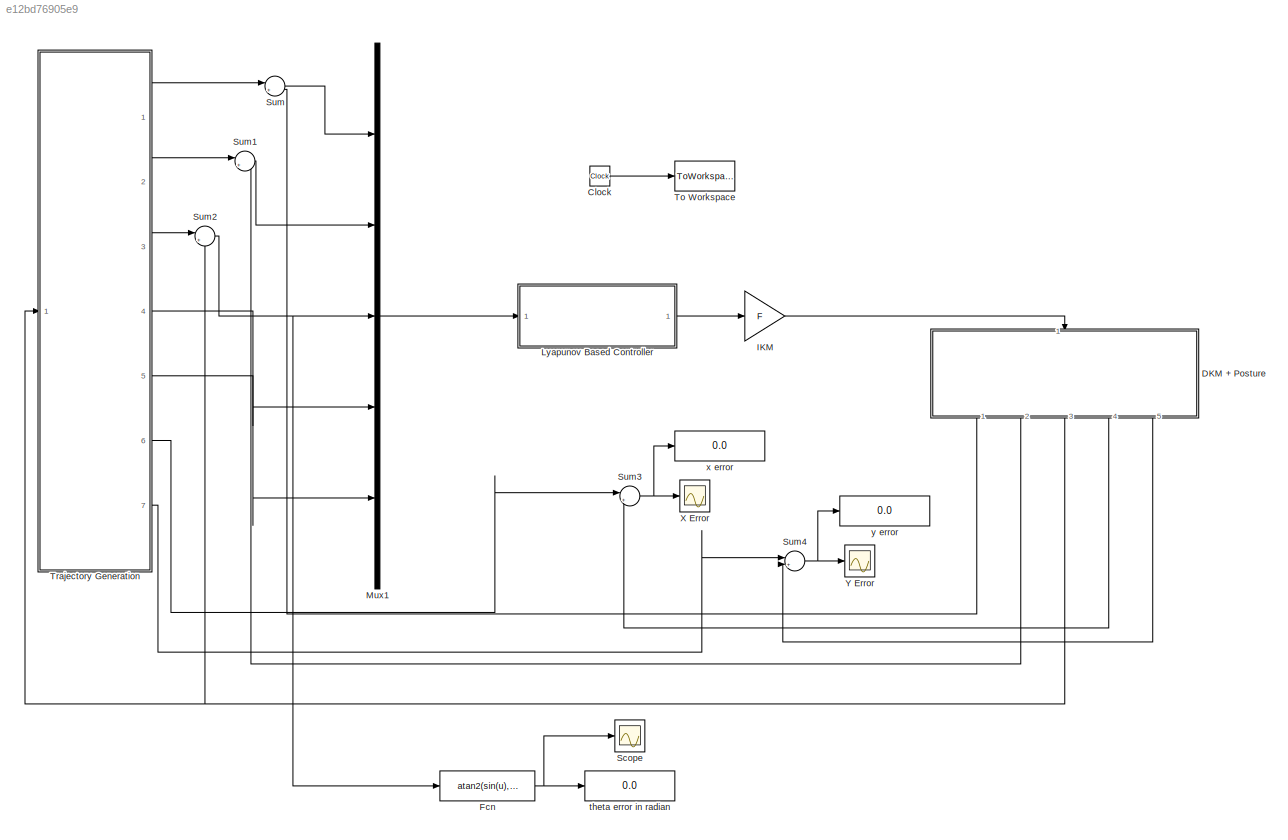
MODEL slx_e12bd76905e9
KIND model
CONFIG AbsTol = auto
CONFIG FixedStep = 0.001
CONFIG MaxStep = auto
CONFIG MinStep = auto
CONFIG RelTol = 1e-3
CONFIG SampleTimeConstraint = Unconstrained
CONFIG Solver = ode3
CONFIG SolverMode = Auto
CONFIG SolverName = ode3
CONFIG StartTime = 0.0
CONFIG StopTime = 26
BLOCK [Clock] Clock
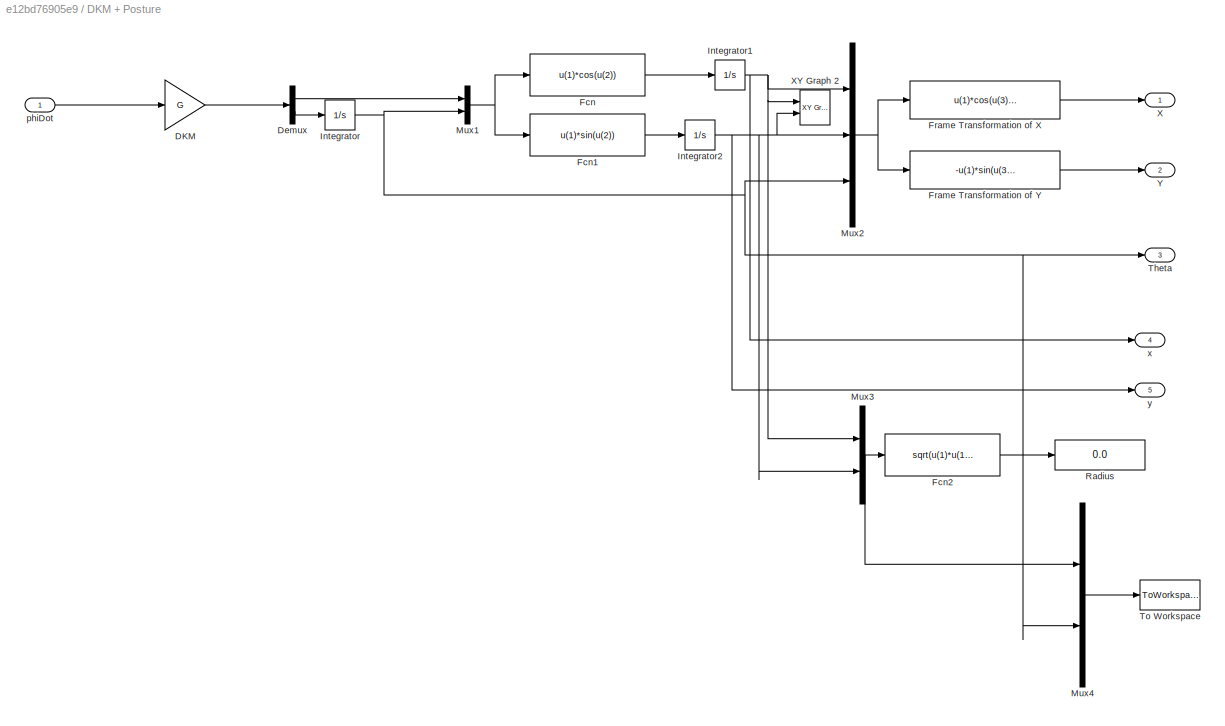
BLOCK [SubSystem] DKM + Posture
  Ports = [1, 5]
  RequestExecContextInheritance = off
BLOCK [Gain] DKM + Posture/DKM
  Gain = G
  Multiplication = Matrix(K*u)
  OutDataTypeStr = Inherit: Inherit via internal rule
  ParamDataTypeStr = Inherit: Inherit via internal rule
  SaturateOnIntegerOverflow = off
BLOCK [Demux] DKM + Posture/Demux
  DisplayOption = bar
  Outputs = 2
  Ports = [1, 2]
BLOCK [Fcn] DKM + Posture/Fcn
  Expr = u(1)*cos(u(2))
BLOCK [Fcn] DKM + Posture/Fcn1
  Expr = u(1)*sin(u(2))
BLOCK [Fcn] DKM + Posture/Fcn2
  Expr = sqrt(u(1)*u(1)+u(2)*u(2))
BLOCK [Fcn] DKM + Posture/Frame Transformation of X
  Expr = u(1)*cos(u(3))+u(2)*sin(u(3))
BLOCK [Fcn] DKM + Posture/Frame Transformation of Y
  Expr = -u(1)*sin(u(3))+u(2)*cos(u(3))
BLOCK [Integrator] DKM + Posture/Integrator
  InitialCondition = theta0
  Ports = [1, 1]
BLOCK [Integrator] DKM + Posture/Integrator1
  InitialCondition = x0
  Ports = [1, 1]
BLOCK [Integrator] DKM + Posture/Integrator2
  InitialCondition = y0
  Ports = [1, 1]
BLOCK [Mux] DKM + Posture/Mux1
  DisplayOption = bar
  Inputs = 2
  Ports = [2, 1]
BLOCK [Mux] DKM + Posture/Mux2
  DisplayOption = bar
  Inputs = 3
  Ports = [3, 1]
BLOCK [Mux] DKM + Posture/Mux3
  DisplayOption = bar
  Inputs = 2
  Ports = [2, 1]
BLOCK [Mux] DKM + Posture/Mux4
  DisplayOption = bar
  Inputs = 2
  Ports = [2, 1]
BLOCK [Display] DKM + Posture/Radius
  Decimation = 1
  Ports = [1]
BLOCK [Outport] DKM + Posture/Theta
  IconDisplay = Port number
  Port = 3
BLOCK [ToWorkspace] DKM + Posture/To Workspace
  FixptAsFi = on
  MaxDataPoints = inf
  Ports = [1]
  SampleTime = -1
  Save2DSignal = 3-D array (concatenate along third dimension)
  VariableName = output
BLOCK [Outport] DKM + Posture/X
  IconDisplay = Port number
BLOCK [Reference] DKM + Posture/XY Graph 2  REF=simulink/Sinks/XY Graph
  Ports = [2]
  SourceBlock = simulink/Sinks/XY Graph
  SourceType = XY scope.
  st = -1
  xmax = 2.3
  xmin = -2.3
  ymax = 2.3
  ymin = -2.3
BLOCK [Outport] DKM + Posture/Y
  IconDisplay = Port number
  Port = 2
BLOCK [Inport] DKM + Posture/phiDot
  IconDisplay = Port number
BLOCK [Outport] DKM + Posture/x
  IconDisplay = Port number
  Port = 4
BLOCK [Outport] DKM + Posture/y
  IconDisplay = Port number
  Port = 5
BLOCK [Fcn] Fcn
  Expr = atan2(sin(u),cos(u))
BLOCK [Gain] IKM
  Gain = F
  Multiplication = Matrix(K*u)
  OutDataTypeStr = Inherit: Inherit via internal rule
  ParamDataTypeStr = Inherit: Inherit via internal rule
  SaturateOnIntegerOverflow = off
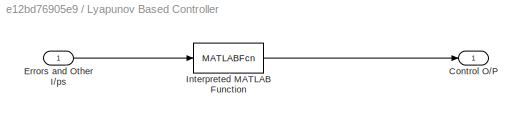
BLOCK [SubSystem] Lyapunov Based Controller
  Ports = [1, 1]
  RequestExecContextInheritance = off
BLOCK [Outport] Lyapunov Based Controller/Control O//P
  IconDisplay = Port number
BLOCK [Inport] Lyapunov Based Controller/Errors and Other I//ps
  IconDisplay = Port number
BLOCK [MATLABFcn] Lyapunov Based Controller/Interpreted MATLAB Function
  MATLABFcn = lyapu(u)
  OutputDimensions = 2
  Ports = [1, 1]
BLOCK [Mux] Mux1
  DisplayOption = bar
  Inputs = 5
  Ports = [5, 1]
BLOCK [Scope] Scope
  DataFormat = StructureWithTime
  Floating = off
  LimitDataPoints = off
  NumInputPorts = 1
  Ports = [1]
  YMax = 0.19635
  YMin = -1.76715
BLOCK [Sum] Sum
  IconShape = round
  InputSameDT = off
  Inputs = |+-
  OutDataTypeStr = Inherit: Inherit via internal rule
  Ports = [2, 1]
  SaturateOnIntegerOverflow = off
BLOCK [Sum] Sum1
  IconShape = round
  InputSameDT = off
  Inputs = |+-
  OutDataTypeStr = Inherit: Inherit via internal rule
  Ports = [2, 1]
  SaturateOnIntegerOverflow = off
BLOCK [Sum] Sum2
  IconShape = round
  InputSameDT = off
  Inputs = |+-
  OutDataTypeStr = Inherit: Inherit via internal rule
  Ports = [2, 1]
  SaturateOnIntegerOverflow = off
BLOCK [Sum] Sum3
  IconShape = round
  InputSameDT = off
  Inputs = |+-
  OutDataTypeStr = Inherit: Inherit via internal rule
  Ports = [2, 1]
  SaturateOnIntegerOverflow = off
BLOCK [Sum] Sum4
  IconShape = round
  InputSameDT = off
  Inputs = |+-
  OutDataTypeStr = Inherit: Inherit via internal rule
  Ports = [2, 1]
  SaturateOnIntegerOverflow = off
BLOCK [ToWorkspace] To Workspace
  FixptAsFi = on
  MaxDataPoints = inf
  Ports = [1]
  SampleTime = -1
  Save2DSignal = 3-D array (concatenate along third dimension)
  VariableName = t
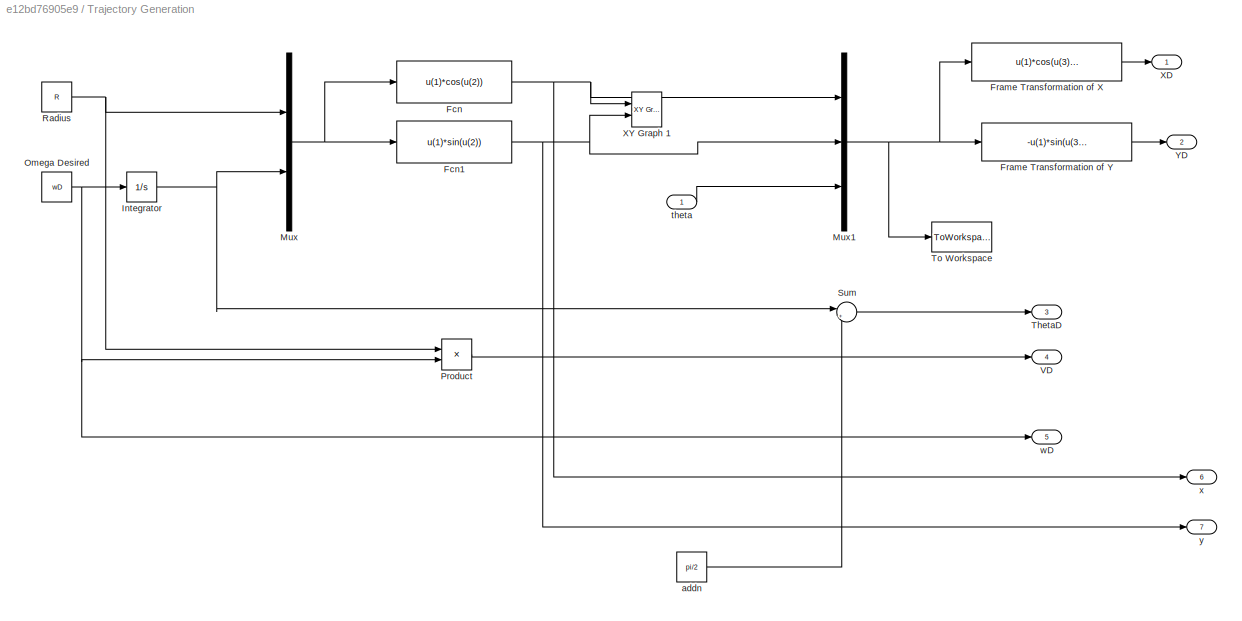
BLOCK [SubSystem] Trajectory Generation
  Ports = [1, 7]
  RequestExecContextInheritance = off
BLOCK [Fcn] Trajectory Generation/Fcn
  Expr = u(1)*cos(u(2))
BLOCK [Fcn] Trajectory Generation/Fcn1
  Expr = u(1)*sin(u(2))
BLOCK [Fcn] Trajectory Generation/Frame Transformation of X
  Expr = u(1)*cos(u(3))+u(2)*sin(u(3))
BLOCK [Fcn] Trajectory Generation/Frame Transformation of Y
  Expr = -u(1)*sin(u(3))+u(2)*cos(u(3))
BLOCK [Integrator] Trajectory Generation/Integrator
  Ports = [1, 1]
BLOCK [Mux] Trajectory Generation/Mux
  DisplayOption = bar
  Inputs = 2
  Ports = [2, 1]
BLOCK [Mux] Trajectory Generation/Mux1
  DisplayOption = bar
  Inputs = 3
  Ports = [3, 1]
BLOCK [Constant] Trajectory Generation/Omega Desired
  Value = wD
BLOCK [Product] Trajectory Generation/Product
  InputSameDT = off
  OutDataTypeStr = Inherit: Inherit via internal rule
  Ports = [2, 1]
  RndMeth = Floor
  SaturateOnIntegerOverflow = off
BLOCK [Constant] Trajectory Generation/Radius
  Value = R
BLOCK [Sum] Trajectory Generation/Sum
  IconShape = round
  InputSameDT = off
  Inputs = |++
  OutDataTypeStr = Inherit: Inherit via internal rule
  Ports = [2, 1]
  SaturateOnIntegerOverflow = off
BLOCK [Outport] Trajectory Generation/ThetaD
  IconDisplay = Port number
  Port = 3
BLOCK [ToWorkspace] Trajectory Generation/To Workspace
  FixptAsFi = on
  MaxDataPoints = inf
  Ports = [1]
  SampleTime = -1
  Save2DSignal = 3-D array (concatenate along third dimension)
  VariableName = input
BLOCK [Outport] Trajectory Generation/VD
  IconDisplay = Port number
  Port = 4
BLOCK [Outport] Trajectory Generation/XD
  IconDisplay = Port number
BLOCK [Reference] Trajectory Generation/XY Graph 1  REF=simulink/Sinks/XY Graph
  Ports = [2]
  SourceBlock = simulink/Sinks/XY Graph
  SourceType = XY scope.
  st = -1
  xmax = 2.3
  xmin = -2.3
  ymax = 2.3
  ymin = -2.3
BLOCK [Outport] Trajectory Generation/YD
  IconDisplay = Port number
  Port = 2
BLOCK [Constant] Trajectory Generation/addn
  Value = pi/2
BLOCK [Inport] Trajectory Generation/theta
  IconDisplay = Port number
BLOCK [Outport] Trajectory Generation/wD
  IconDisplay = Port number
  Port = 5
BLOCK [Outport] Trajectory Generation/x
  IconDisplay = Port number
  Port = 6
BLOCK [Outport] Trajectory Generation/y
  IconDisplay = Port number
  Port = 7
BLOCK [Scope] X Error
  DataFormat = StructureWithTime
  Floating = off
  LimitDataPoints = off
  NumInputPorts = 1
  Ports = [1]
  SaveName = ScopeData1
  YMax = 0.03768
  YMin = -0.33752
BLOCK [Scope] Y Error
  DataFormat = StructureWithTime
  Floating = off
  LimitDataPoints = off
  NumInputPorts = 1
  Ports = [1]
  SaveName = ScopeData2
  YMax = 0.08605
  YMin = -0.11626
BLOCK [Display] theta error in radian
  Decimation = 1
  Ports = [1]
BLOCK [Display] x error 
  Decimation = 1
  Ports = [1]
BLOCK [Display] y error
  Decimation = 1
  Ports = [1]
LINE Clock:1 -> To Workspace:1
LINE DKM + Posture/DKM:1 -> DKM + Posture/Demux:1
LINE DKM + Posture/Demux:1 -> DKM + Posture/Mux1:1
LINE DKM + Posture/Demux:2 -> DKM + Posture/Integrator:1
LINE DKM + Posture/Fcn1:1 -> DKM + Posture/Integrator2:1
LINE DKM + Posture/Fcn2:1 -> DKM + Posture/Radius:1
LINE DKM + Posture/Fcn:1 -> DKM + Posture/Integrator1:1
LINE DKM + Posture/Frame Transformation of X:1 -> DKM + Posture/X:1
LINE DKM + Posture/Frame Transformation of Y:1 -> DKM + Posture/Y:1
NET DKM + Posture/Integrator1:1 -> DKM + Posture/Mux2:1, DKM + Posture/Mux3:1, DKM + Posture/XY Graph 2:1, DKM + Posture/x:1
NET DKM + Posture/Integrator2:1 -> DKM + Posture/Mux2:2, DKM + Posture/Mux3:2, DKM + Posture/XY Graph 2:2, DKM + Posture/y:1
NET DKM + Posture/Integrator:1 -> DKM + Posture/Mux1:2, DKM + Posture/Mux2:3, DKM + Posture/Mux4:2, DKM + Posture/Theta:1
NET DKM + Posture/Mux1:1 -> DKM + Posture/Fcn1:1, DKM + Posture/Fcn:1
NET DKM + Posture/Mux2:1 -> DKM + Posture/Frame Transformation of X:1, DKM + Posture/Frame Transformation of Y:1
NET DKM + Posture/Mux3:1 -> DKM + Posture/Fcn2:1, DKM + Posture/Mux4:1
LINE DKM + Posture/Mux4:1 -> DKM + Posture/To Workspace:1
LINE DKM + Posture/phiDot:1 -> DKM + Posture/DKM:1
LINE DKM + Posture:1 -> Sum:2
LINE DKM + Posture:2 -> Sum1:2
NET DKM + Posture:3 -> Sum2:2, Trajectory Generation:1
LINE DKM + Posture:4 -> Sum3:2
LINE DKM + Posture:5 -> Sum4:2
NET Fcn:1 -> Scope:1, theta error in radian:1
LINE IKM:1 -> DKM + Posture:1
LINE Lyapunov Based Controller/Errors and Other I//ps:1 -> Lyapunov Based Controller/Interpreted MATLAB Function:1
LINE Lyapunov Based Controller/Interpreted MATLAB Function:1 -> Lyapunov Based Controller/Control O//P:1
LINE Lyapunov Based Controller:1 -> IKM:1
LINE Mux1:1 -> Lyapunov Based Controller:1
LINE Sum1:1 -> Mux1:2
NET Sum2:1 -> Fcn:1, Mux1:3
NET Sum3:1 -> X Error:1, x error :1
NET Sum4:1 -> Y Error:1, y error:1
LINE Sum:1 -> Mux1:1
NET Trajectory Generation/Fcn1:1 -> Trajectory Generation/Mux1:2, Trajectory Generation/XY Graph 1:2, Trajectory Generation/y:1
NET Trajectory Generation/Fcn:1 -> Trajectory Generation/Mux1:1, Trajectory Generation/XY Graph 1:1, Trajectory Generation/x:1
LINE Trajectory Generation/Frame Transformation of X:1 -> Trajectory Generation/XD:1
LINE Trajectory Generation/Frame Transformation of Y:1 -> Trajectory Generation/YD:1
NET Trajectory Generation/Integrator:1 -> Trajectory Generation/Mux:2, Trajectory Generation/Sum:1
NET Trajectory Generation/Mux1:1 -> Trajectory Generation/Frame Transformation of X:1, Trajectory Generation/Frame Transformation of Y:1, Trajectory Generation/To Workspace:1
NET Trajectory Generation/Mux:1 -> Trajectory Generation/Fcn1:1, Trajectory Generation/Fcn:1
NET Trajectory Generation/Omega Desired:1 -> Trajectory Generation/Integrator:1, Trajectory Generation/Product:2, Trajectory Generation/wD:1
LINE Trajectory Generation/Product:1 -> Trajectory Generation/VD:1
NET Trajectory Generation/Radius:1 -> Trajectory Generation/Mux:1, Trajectory Generation/Product:1
LINE Trajectory Generation/Sum:1 -> Trajectory Generation/ThetaD:1
LINE Trajectory Generation/addn:1 -> Trajectory Generation/Sum:2
LINE Trajectory Generation/theta:1 -> Trajectory Generation/Mux1:3
LINE Trajectory Generation:1 -> Sum:1
LINE Trajectory Generation:2 -> Sum1:1
LINE Trajectory Generation:3 -> Sum2:1
LINE Trajectory Generation:4 -> Mux1:4
LINE Trajectory Generation:5 -> Mux1:5
LINE Trajectory Generation:6 -> Sum3:1
LINE Trajectory Generation:7 -> Sum4:1
note: NET lines group one-source signal fan-out (src -> all destinations, sorted); 1:1 wires keep LINE
